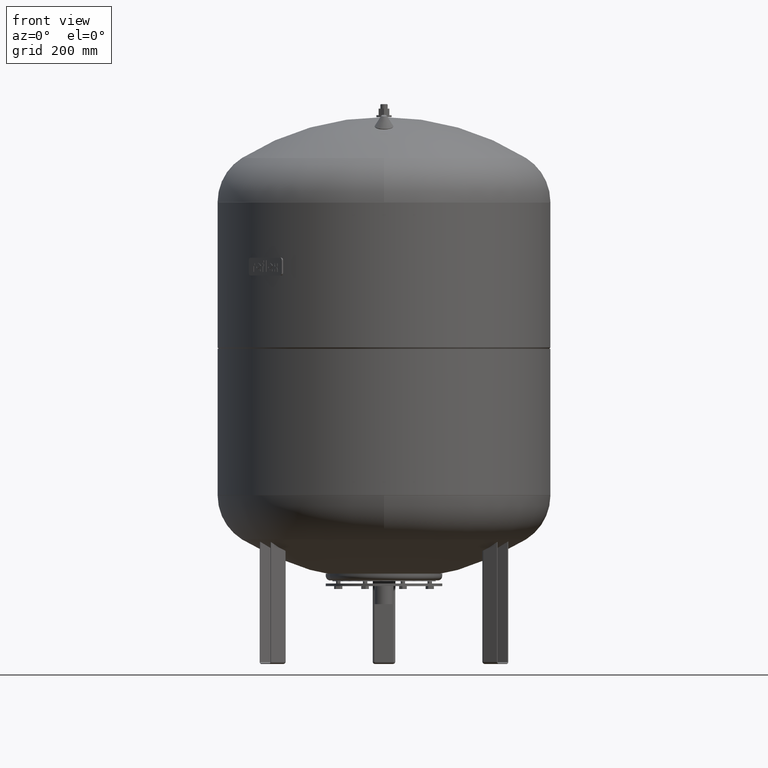
[diagram: clean part render]
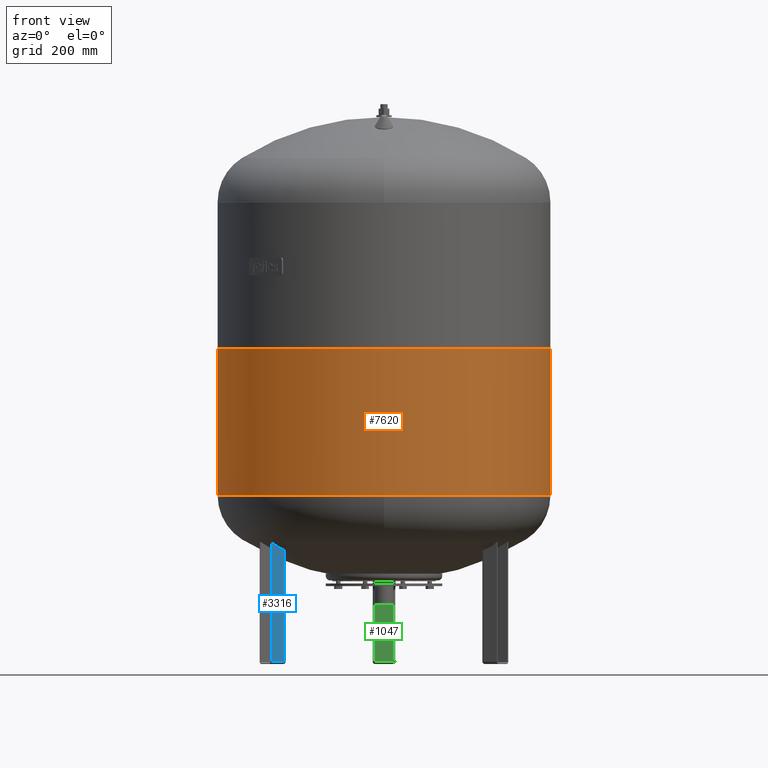
[diagram: same view with three faces highlighted in distinct colors, each labeled with its STEP entity id]
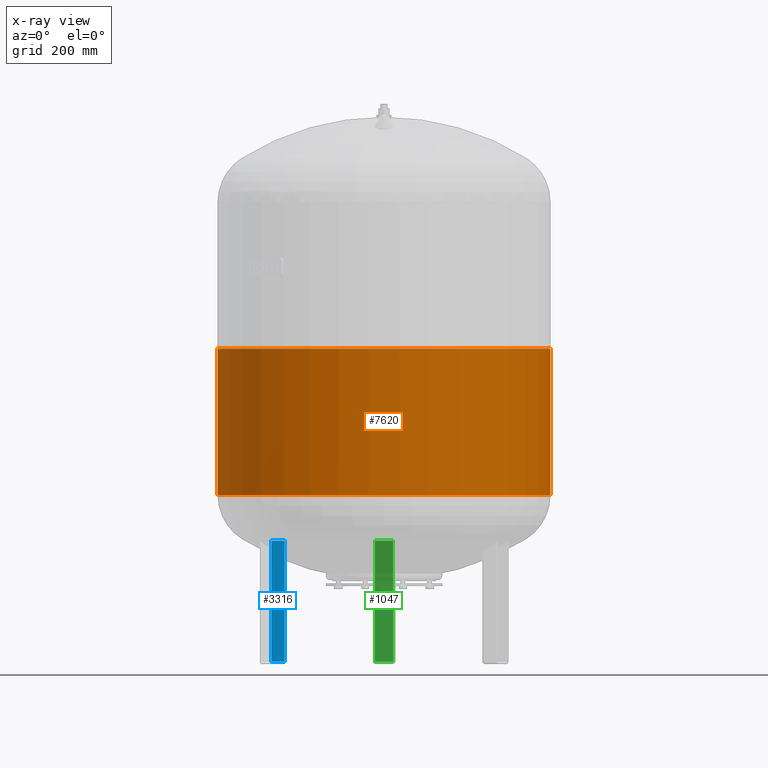
[diagram: x-ray of the same camera — body ghosted, the three highlighted faces saturated]
A machine part, front view with three faces highlighted in distinct colors.
The next image is the same camera in x-ray (body ghosted, the three faces saturated) — at least one of them is partly hidden behind the body in this view.
Their STEP definitions:

[orange] entity #7620 — the highlighted cylindrical surface (partial cylindrical patch) has radius 370 mm, axis along (0, 0, 1).
#7579=CARTESIAN_POINT('',(-1.668796E-014,0.0,372.500000000000000));
#7580=DIRECTION('',(0.0,0.0,1.0));
#7581=DIRECTION('',(1.0,0.0,0.0));
#7582=AXIS2_PLACEMENT_3D('',#7579,#7580,#7581);
#7583=CYLINDRICAL_SURFACE('',#7582,370.0);
#7584=CARTESIAN_POINT('',(369.999999999999770,0.0,701.0));
#7585=VERTEX_POINT('',#7584);
#7586=CARTESIAN_POINT('',(370.0,0.0,375.0));
#7587=VERTEX_POINT('',#7586);
#7588=CARTESIAN_POINT('',(369.999999999999770,0.0,701.0));
#7589=DIRECTION('',(0.0,0.0,-1.0));
#7590=VECTOR('',#7589,326.0);
#7591=LINE('',#7588,#7590);
#7592=EDGE_CURVE('',#7585,#7587,#7591,.T.);
#7593=ORIENTED_EDGE('',*,*,#7592,.F.);
#7594=CARTESIAN_POINT('',(-370.0,-4.531044E-014,701.0));
#7595=VERTEX_POINT('',#7594);
#7596=CARTESIAN_POINT('',(0.0,0.0,701.0));
#7597=DIRECTION('',(0.0,0.0,1.0));
#7598=DIRECTION('',(1.0,0.0,0.0));
#7599=AXIS2_PLACEMENT_3D('',#7596,#7597,#7598);
#7600=CIRCLE('',#7599,369.999999999999770);
#7601=EDGE_CURVE('',#7595,#7585,#7600,.T.);
#7602=ORIENTED_EDGE('',*,*,#7601,.F.);
#7603=CARTESIAN_POINT('',(-370.0,4.531044E-014,375.0));
#7604=VERTEX_POINT('',#7603);
#7605=CARTESIAN_POINT('',(-370.0,-4.531044E-014,701.0));
#7606=DIRECTION('',(0.0,0.0,-1.0));
#7607=VECTOR('',#7606,326.0);
#7608=LINE('',#7605,#7607);
#7609=EDGE_CURVE('',#7595,#7604,#7608,.T.);
#7610=ORIENTED_EDGE('',*,*,#7609,.T.);
#7611=CARTESIAN_POINT('',(-1.668796E-014,0.0,375.0));
#7612=DIRECTION('',(0.0,0.0,-1.0));
#7613=DIRECTION('',(1.0,0.0,0.0));
#7614=AXIS2_PLACEMENT_3D('',#7611,#7612,#7613);
#7615=CIRCLE('',#7614,370.0);
#7616=EDGE_CURVE('',#7587,#7604,#7615,.T.);
#7617=ORIENTED_EDGE('',*,*,#7616,.F.);
#7618=EDGE_LOOP('',(#7593,#7602,#7610,#7617));
#7619=FACE_OUTER_BOUND('',#7618,.T.);
#7620=ADVANCED_FACE('',(#7619),#7583,.T.);

[blue] entity #3316 — the highlighted planar face has unit normal (0.5, -0.866, 0).
#2378=CARTESIAN_POINT('',(-250.771722750469370,-173.650635094610950,274.0));
#2379=VERTEX_POINT('',#2378);
#2387=CARTESIAN_POINT('',(-221.326859021798440,-156.650635094610950,274.0));
#2388=VERTEX_POINT('',#2387);
#2389=CARTESIAN_POINT('',(-221.326859021798440,-156.650635094610950,274.0));
#2390=DIRECTION('',(-0.866025403784439,-0.500000000000000,0.0));
#2391=VECTOR('',#2390,34.000000000000007);
#2392=LINE('',#2389,#2391);
#2393=EDGE_CURVE('',#2388,#2379,#2392,.T.);
#2823=CARTESIAN_POINT('',(-250.771722750469370,-173.650635094610950,5.000000000000004));
#2824=VERTEX_POINT('',#2823);
#2851=CARTESIAN_POINT('',(-250.771722750469370,-173.650635094610950,5.000000000000004));
#2852=DIRECTION('',(0.0,0.0,1.0));
#2853=VECTOR('',#2852,269.0);
#2854=LINE('',#2851,#2853);
#2855=EDGE_CURVE('',#2824,#2379,#2854,.T.);
#3051=CARTESIAN_POINT('',(-221.326859021798440,-156.650635094610950,5.000000000000004));
#3052=VERTEX_POINT('',#3051);
#3060=CARTESIAN_POINT('',(-221.326859021798440,-156.650635094610950,5.000000000000004));
#3061=DIRECTION('',(-0.866025403784439,-0.500000000000000,0.0));
#3062=VECTOR('',#3061,34.000000000000007);
#3063=LINE('',#3060,#3062);
#3064=EDGE_CURVE('',#3052,#2824,#3063,.T.);
#3186=CARTESIAN_POINT('',(-221.326859021798440,-156.650635094610950,5.000000000000004));
#3187=DIRECTION('',(0.0,0.0,1.0));
#3188=VECTOR('',#3187,269.0);
#3189=LINE('',#3186,#3188);
#3190=EDGE_CURVE('',#3052,#2388,#3189,.T.);
#3305=CARTESIAN_POINT('',(-216.996732002876260,-154.150635094610950,4.592425E-015));
#3306=DIRECTION('',(0.500000000000000,-0.866025403784439,1.836970E-016));
#3307=DIRECTION('',(0.866025403784439,0.500000000000000,-3.059170E-032));
#3308=AXIS2_PLACEMENT_3D('',#3305,#3306,#3307);
#3309=PLANE('',#3308);
#3310=ORIENTED_EDGE('',*,*,#2855,.F.);
#3311=ORIENTED_EDGE('',*,*,#3064,.F.);
#3312=ORIENTED_EDGE('',*,*,#3190,.T.);
#3313=ORIENTED_EDGE('',*,*,#2393,.T.);
#3314=EDGE_LOOP('',(#3310,#3311,#3312,#3313));
#3315=FACE_OUTER_BOUND('',#3314,.T.);
#3316=ADVANCED_FACE('',(#3315),#3309,.T.);

[green] entity #1047 — the highlighted planar face has unit normal (0, -1, 0).
#267=CARTESIAN_POINT('',(-20.0,265.0,274.0));
#268=VERTEX_POINT('',#267);
#276=CARTESIAN_POINT('',(20.0,265.0,274.0));
#277=VERTEX_POINT('',#276);
#278=CARTESIAN_POINT('',(20.0,265.0,274.0));
#279=DIRECTION('',(-1.0,0.0,0.0));
#280=VECTOR('',#279,40.0);
#281=LINE('',#278,#280);
#282=EDGE_CURVE('',#277,#268,#281,.T.);
#912=CARTESIAN_POINT('',(20.000000000000004,265.0,4.999999999999996));
#913=VERTEX_POINT('',#912);
#921=CARTESIAN_POINT('',(-19.999999999999996,265.0,5.000000000000004));
#922=VERTEX_POINT('',#921);
#923=CARTESIAN_POINT('',(20.000000000000004,265.0,4.999999999999996));
#924=DIRECTION('',(-1.0,0.0,0.0));
#925=VECTOR('',#924,40.0);
#926=LINE('',#923,#925);
#927=EDGE_CURVE('',#913,#922,#926,.T.);
#1015=CARTESIAN_POINT('',(-19.999999999999996,265.0,5.000000000000004));
#1016=DIRECTION('',(0.0,0.0,1.0));
#1017=VECTOR('',#1016,269.0);
#1018=LINE('',#1015,#1017);
#1019=EDGE_CURVE('',#922,#268,#1018,.T.);
#1031=CARTESIAN_POINT('',(25.000000000000004,265.0,-4.592425E-015));
#1032=DIRECTION('',(0.0,-1.0,0.0));
#1033=DIRECTION('',(1.0,0.0,0.0));
#1034=AXIS2_PLACEMENT_3D('',#1031,#1032,#1033);
#1035=PLANE('',#1034);
#1036=ORIENTED_EDGE('',*,*,#927,.F.);
#1037=CARTESIAN_POINT('',(20.000000000000004,265.0,4.999999999999996));
#1038=DIRECTION('',(0.0,0.0,1.0));
#1039=VECTOR('',#1038,269.0);
#1040=LINE('',#1037,#1039);
#1041=EDGE_CURVE('',#913,#277,#1040,.T.);
#1042=ORIENTED_EDGE('',*,*,#1041,.T.);
#1043=ORIENTED_EDGE('',*,*,#282,.T.);
#1044=ORIENTED_EDGE('',*,*,#1019,.F.);
#1045=EDGE_LOOP('',(#1036,#1042,#1043,#1044));
#1046=FACE_OUTER_BOUND('',#1045,.T.);
#1047=ADVANCED_FACE('',(#1046),#1035,.T.);